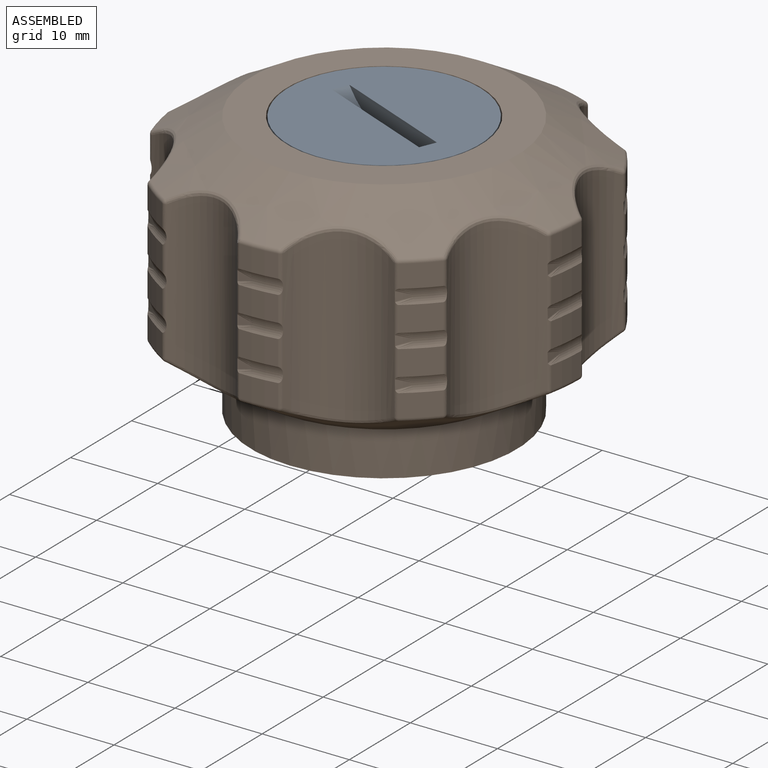
[diagram: assembled view]
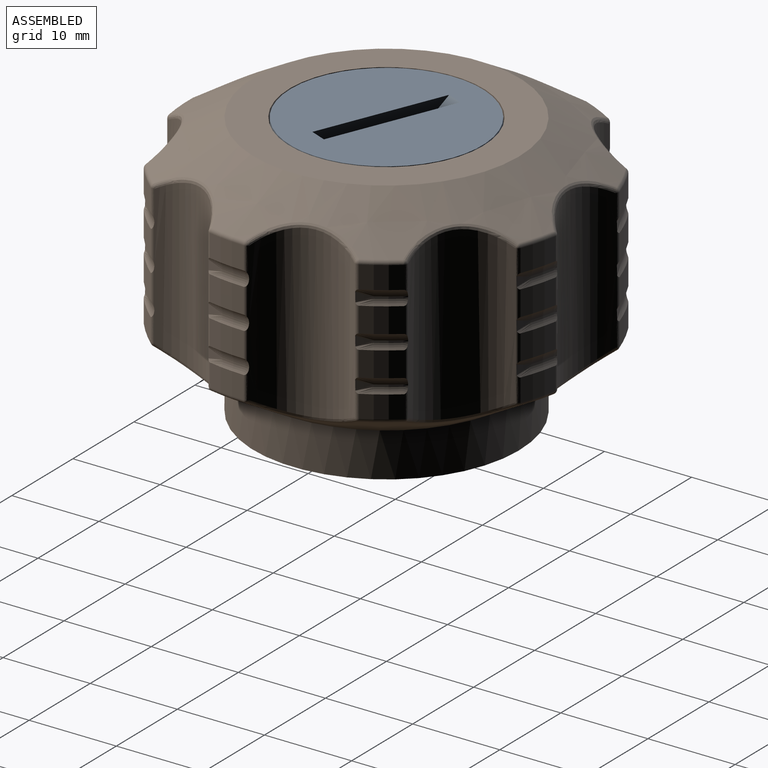
[diagram: assembled view, second angle]
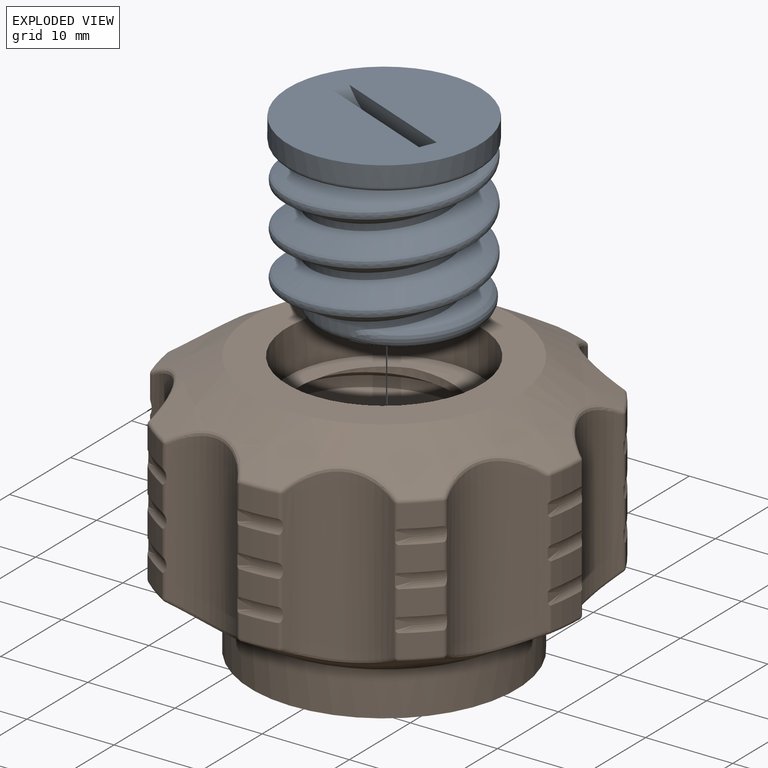
[diagram: exploded view]
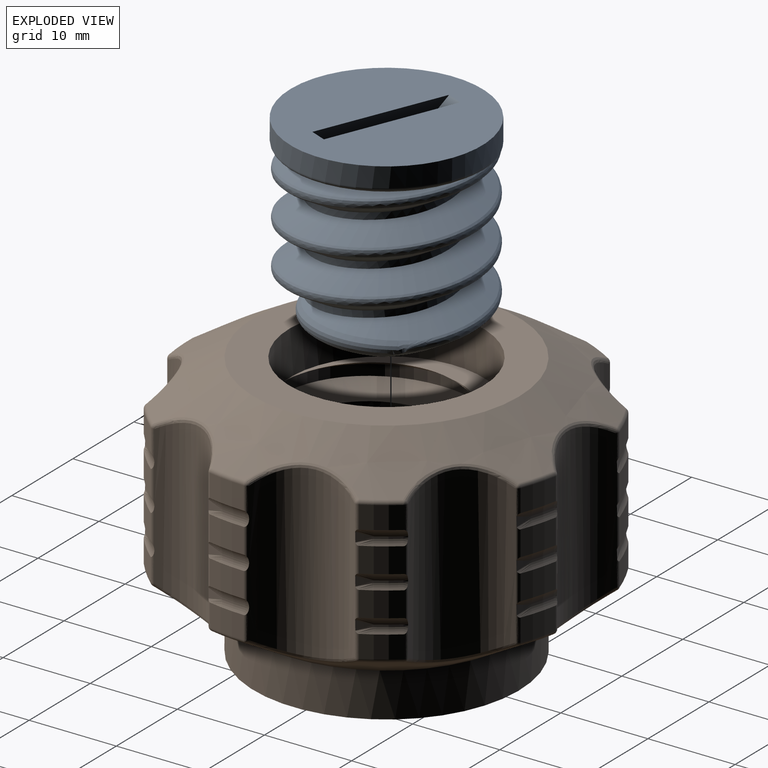
[diagram: exploded view, second angle]
ASSEMBLY  parts=2 mates=2
PART A: 24 faces, bbox 23.8x26.6x22.8 mm
  f0: plane 15.83x15.15mm, normal (0,0,-1), area 103mm2, adj f3,f7,f13,f14
  f1: plane 21.97x21.97mm, normal (0,0,1), area 348.9mm2, adj f5,f9,f10,f11
  f2: cylinder r=7.81mm len=16.51mm, axis (0,0,1), area 123.2mm2, adj f3,f4,f6,f13,f14
  f3: bspline ~25.66x22.23mm, area 642.2mm2, adj f0,f2,f6,f13,f14,f16,f19
  f4: bspline ~25.66x22.23mm, area 575.8mm2, adj f2,f6,f13,f15,f23
  f5: cylinder r=10.99mm len=21.97mm, axis (0,0,-1), area 159.4mm2, adj f1,f18,f19,f20,f21,f22,f23
  f6: plane 20.96x20.85mm, normal (0,0,-1), area 71.6mm2, adj f2,f3,f4,f21
  f7: cylinder r=5.27mm len=10.54mm, axis (0,0,1), area 33.6mm2, adj f0,f8
  f8: plane 10.54x10.54mm, normal (0,0,-1), area 87.3mm2, adj f7
  f9: cylinder r=10.6mm len=15.26mm, axis (0,-1,0), area 33.7mm2, adj f1,f10,f11
  f10: plane 15.26x3.24mm, normal (0,-1,0), area 34.1mm2, adj f1,f9
  f11: plane 15.26x3.24mm, normal (0,1,0), area 34.1mm2, adj f1,f9
  f12: cylinder r=10.86mm len=21.72mm, axis (0,0,-1), area 45.8mm2, adj f15,f16,f17,f20
  f13: bspline ~23.16x10.91mm, area 49.9mm2, adj f0,f2,f3,f4,f14,f16,f17
  f14: torus R=6.79mm, axis (0,0,-1), area 26.1mm2, adj f0,f2,f3,f13
  f15: bspline ~21.73x21.73mm, area 112.8mm2, adj f4,f12,f17,f22
  f16: bspline ~21.73x21.72mm, area 118.7mm2, adj f3,f12,f13,f17,f18
  f17: bspline ~2.79x0.98mm, area 0.7mm2, adj f12,f13,f15,f16
  f18: bspline ~5.82x1.45mm, area 2.8mm2, adj f5,f16,f19,f20
  f19: bspline ~2.82x0.84mm, area 0.8mm2, adj f3,f5,f18,f21
  f20: torus R=10.48mm, axis (0,0,-1), area 1mm2, adj f5,f12,f18,f22
  f21: torus R=10.48mm, axis (0,0,1), area 40.8mm2, adj f5,f6,f19,f23
  f22: bspline ~5.35x3.22mm, area 2.8mm2, adj f5,f15,f20,f23
  f23: bspline ~2.21x0.76mm, area 0.7mm2, adj f4,f5,f21,f22
PART B: 238 faces, bbox 48.3x47.6x31.7 mm
  f0: cylinder r=22.86mm len=3.64mm, axis (0,0,-1), area 10.9mm2, adj f12,f90,f95,f237
  f1: cylinder r=22.86mm len=3.64mm, axis (0,0,-1), area 12.2mm2, adj f6,f13,f236,f237
  f2: cylinder r=22.86mm len=3.64mm, axis (0,0,-1), area 12.2mm2, adj f7,f14,f235,f236
  f3: cylinder r=0.51mm len=4.2mm, axis (0,0,1), area 1.9mm2, adj f73,f92,f212,f213
  f4: cylinder r=0.51mm len=4.2mm, axis (0,0,1), area 1.9mm2, adj f74,f92,f211,f212
  f5: cylinder r=0.51mm len=3.25mm, axis (0,0,1), area 1.5mm2, adj f84,f92,f192,f211
  f6: cylinder r=0.51mm len=4.2mm, axis (0,0,-1), area 1.9mm2, adj f1,f92,f236,f237
  f7: cylinder r=0.51mm len=4.2mm, axis (0,0,-1), area 1.9mm2, adj f2,f92,f235,f236
  f8: cylinder r=0.51mm len=3.25mm, axis (0,0,-1), area 1.5mm2, adj f82,f88,f92,f235
  f9: cylinder r=22.86mm len=4.14mm, axis (0,0,-1), area 10.9mm2, adj f21,f102,f107,f234
  f10: cylinder r=22.86mm len=4.14mm, axis (0,0,-1), area 12.2mm2, adj f15,f22,f233,f234
  f11: cylinder r=22.86mm len=4.14mm, axis (0,0,-1), area 12.2mm2, adj f16,f23,f232,f233
  f12: cylinder r=0.51mm len=3.25mm, axis (0,0,1), area 1.5mm2, adj f0,f99,f104,f237
  f13: cylinder r=0.51mm len=4.2mm, axis (0,0,1), area 1.9mm2, adj f1,f104,f236,f237
  f14: cylinder r=0.51mm len=4.2mm, axis (0,0,1), area 1.9mm2, adj f2,f104,f235,f236
  f15: cylinder r=0.51mm len=4.2mm, axis (0,0,-1), area 1.9mm2, adj f10,f104,f233,f234
  f16: cylinder r=0.51mm len=4.2mm, axis (0,0,-1), area 1.9mm2, adj f11,f104,f232,f233
  f17: cylinder r=0.51mm len=3.25mm, axis (0,0,-1), area 1.5mm2, adj f94,f100,f104,f232
  f18: cylinder r=22.86mm len=3.22mm, axis (0,0,-1), area 10.9mm2, adj f24,f30,f119,f231
  f19: cylinder r=22.86mm len=3.22mm, axis (0,0,-1), area 12.2mm2, adj f25,f31,f230,f231
  f20: cylinder r=22.86mm len=3.22mm, axis (0,0,-1), area 12.2mm2, adj f26,f32,f229,f230
  f21: cylinder r=0.51mm len=3.25mm, axis (0,0,1), area 1.5mm2, adj f9,f111,f116,f234
  f22: cylinder r=0.51mm len=4.2mm, axis (0,0,1), area 1.9mm2, adj f10,f116,f233,f234
  f23: cylinder r=0.51mm len=4.2mm, axis (0,0,1), area 1.9mm2, adj f11,f116,f232,f233
  f24: cylinder r=0.51mm len=3.25mm, axis (0,0,-1), area 1.5mm2, adj f18,f115,f116,f231
  f25: cylinder r=0.51mm len=4.2mm, axis (0,0,-1), area 1.9mm2, adj f19,f116,f230,f231
  f26: cylinder r=0.51mm len=4.2mm, axis (0,0,-1), area 1.9mm2, adj f20,f116,f229,f230
  f27: cylinder r=22.86mm len=4.21mm, axis (0,0,-1), area 10.9mm2, adj f33,f131,f133,f228
  f28: cylinder r=22.86mm len=4.21mm, axis (0,0,-1), area 12.2mm2, adj f34,f39,f227,f228
  f29: cylinder r=22.86mm len=4.21mm, axis (0,0,-1), area 12.2mm2, adj f35,f40,f226,f227
  f30: cylinder r=0.51mm len=3.25mm, axis (0,0,1), area 1.5mm2, adj f18,f123,f128,f231
  f31: cylinder r=0.51mm len=4.2mm, axis (0,0,1), area 1.9mm2, adj f19,f128,f230,f231
  f32: cylinder r=0.51mm len=4.2mm, axis (0,0,1), area 1.9mm2, adj f20,f128,f229,f230
  f33: cylinder r=0.51mm len=3.25mm, axis (0,0,-1), area 1.5mm2, adj f27,f127,f128,f228
  f34: cylinder r=0.51mm len=4.2mm, axis (0,0,-1), area 1.9mm2, adj f28,f128,f227,f228
  f35: cylinder r=0.51mm len=4.2mm, axis (0,0,-1), area 1.9mm2, adj f29,f128,f226,f227
  f36: cylinder r=22.86mm len=3.22mm, axis (0,0,-1), area 10.9mm2, adj f42,f143,f145,f225
  f37: cylinder r=22.86mm len=3.22mm, axis (0,0,-1), area 12.2mm2, adj f43,f48,f224,f225
  f38: cylinder r=22.86mm len=3.22mm, axis (0,0,-1), area 12.2mm2, adj f44,f49,f223,f224
  f39: cylinder r=0.51mm len=4.2mm, axis (0,0,1), area 1.9mm2, adj f28,f140,f227,f228
  f40: cylinder r=0.51mm len=4.2mm, axis (0,0,1), area 1.9mm2, adj f29,f140,f226,f227
  f41: cylinder r=0.51mm len=3.25mm, axis (0,0,1), area 1.5mm2, adj f118,f132,f140,f226
  f42: cylinder r=0.51mm len=3.25mm, axis (0,0,-1), area 1.5mm2, adj f36,f139,f140,f225
  f43: cylinder r=0.51mm len=4.2mm, axis (0,0,-1), area 1.9mm2, adj f37,f140,f224,f225
  f44: cylinder r=0.51mm len=4.2mm, axis (0,0,-1), area 1.9mm2, adj f38,f140,f223,f224
  f45: cylinder r=22.86mm len=4.14mm, axis (0,0,-1), area 10.9mm2, adj f57,f150,f155,f222
  f46: cylinder r=22.86mm len=4.14mm, axis (0,0,-1), area 12.2mm2, adj f51,f58,f221,f222
  f47: cylinder r=22.86mm len=4.14mm, axis (0,0,-1), area 12.2mm2, adj f52,f59,f220,f221
  f48: cylinder r=0.51mm len=4.2mm, axis (0,0,1), area 1.9mm2, adj f37,f152,f224,f225
  f49: cylinder r=0.51mm len=4.2mm, axis (0,0,1), area 1.9mm2, adj f38,f152,f223,f224
  f50: cylinder r=0.51mm len=3.25mm, axis (0,0,1), area 1.5mm2, adj f130,f144,f152,f223
  f51: cylinder r=0.51mm len=4.2mm, axis (0,0,-1), area 1.9mm2, adj f46,f152,f221,f222
  f52: cylinder r=0.51mm len=4.2mm, axis (0,0,-1), area 1.9mm2, adj f47,f152,f220,f221
  f53: cylinder r=0.51mm len=3.25mm, axis (0,0,-1), area 1.5mm2, adj f142,f148,f152,f220
  f54: cylinder r=22.86mm len=3.64mm, axis (0,0,-1), area 10.9mm2, adj f66,f162,f167,f219
  f55: cylinder r=22.86mm len=3.64mm, axis (0,0,-1), area 12.2mm2, adj f60,f67,f218,f219
  f56: cylinder r=22.86mm len=3.64mm, axis (0,0,-1), area 12.2mm2, adj f61,f68,f217,f218
  f57: cylinder r=0.51mm len=3.25mm, axis (0,0,1), area 1.5mm2, adj f45,f159,f164,f222
  f58: cylinder r=0.51mm len=4.2mm, axis (0,0,1), area 1.9mm2, adj f46,f164,f221,f222
  f59: cylinder r=0.51mm len=4.2mm, axis (0,0,1), area 1.9mm2, adj f47,f164,f220,f221
  f60: cylinder r=0.51mm len=4.2mm, axis (0,0,-1), area 1.9mm2, adj f55,f164,f218,f219
  f61: cylinder r=0.51mm len=4.2mm, axis (0,0,-1), area 1.9mm2, adj f56,f164,f217,f218
  f62: cylinder r=0.51mm len=3.25mm, axis (0,0,-1), area 1.5mm2, adj f154,f160,f164,f217
  f63: cylinder r=22.86mm len=3.95mm, axis (0,0,-1), area 10.9mm2, adj f69,f200,f204,f216
  f64: cylinder r=22.86mm len=3.95mm, axis (0,0,-1), area 12.2mm2, adj f70,f75,f215,f216
  f65: cylinder r=22.86mm len=3.95mm, axis (0,0,-1), area 12.2mm2, adj f71,f76,f214,f215
  f66: cylinder r=0.51mm len=3.25mm, axis (0,0,1), area 1.5mm2, adj f54,f171,f176,f219
  f67: cylinder r=0.51mm len=4.2mm, axis (0,0,1), area 1.9mm2, adj f55,f176,f218,f219
  f68: cylinder r=0.51mm len=4.2mm, axis (0,0,1), area 1.9mm2, adj f56,f176,f217,f218
  f69: cylinder r=0.51mm len=3.25mm, axis (0,0,-1), area 1.5mm2, adj f63,f175,f176,f216
  f70: cylinder r=0.51mm len=4.2mm, axis (0,0,-1), area 1.9mm2, adj f64,f176,f215,f216
  f71: cylinder r=0.51mm len=4.2mm, axis (0,0,-1), area 1.9mm2, adj f65,f176,f214,f215
  f72: cylinder r=22.86mm len=3.95mm, axis (0,0,-1), area 10.9mm2, adj f83,f85,f209,f213
  f73: cylinder r=22.86mm len=3.95mm, axis (0,0,-1), area 12.2mm2, adj f3,f78,f212,f213
  f74: cylinder r=22.86mm len=3.95mm, axis (0,0,-1), area 12.2mm2, adj f4,f79,f211,f212
  f75: cylinder r=0.51mm len=4.2mm, axis (0,0,1), area 1.9mm2, adj f64,f202,f215,f216
  f76: cylinder r=0.51mm len=4.2mm, axis (0,0,1), area 1.9mm2, adj f65,f202,f214,f215
  f77: cylinder r=0.51mm len=3.25mm, axis (0,0,1), area 1.5mm2, adj f166,f202,f203,f214
  f78: cylinder r=0.51mm len=4.2mm, axis (0,0,-1), area 1.9mm2, adj f73,f202,f212,f213
  f79: cylinder r=0.51mm len=4.2mm, axis (0,0,-1), area 1.9mm2, adj f74,f202,f211,f212
  f80: cylinder r=0.51mm len=3.25mm, axis (0,0,-1), area 1.5mm2, adj f192,f202,f207,f211
  f81: torus R=22.35mm, axis (0,0,1), area 2.2mm2, adj f84,f187,f192,f207
  f82: cylinder r=22.86mm len=3.64mm, axis (0,0,-1), area 10.9mm2, adj f8,f93,f97,f235
  f83: torus R=22.35mm, axis (0,0,1), area 2.2mm2, adj f72,f87,f191,f210
  f84: sphere r=0.51mm, area 0.3mm2, adj f5,f81,f86
  f85: cylinder r=0.51mm len=3.25mm, axis (0,0,1), area 1.5mm2, adj f72,f87,f92,f213
  f86: bspline ~9.87x7.67mm, area 7.5mm2, adj f84,f88,f92,f187
  f87: sphere r=0.51mm, area 0.3mm2, adj f83,f85,f89
  f88: sphere r=0.51mm, area 0.3mm2, adj f8,f86,f93
  f89: bspline ~9.87x7.68mm, area 7.5mm2, adj f87,f91,f92,f191
  f90: cylinder r=0.51mm len=3.25mm, axis (0,0,-1), area 1.5mm2, adj f0,f91,f92,f237
  f91: sphere r=0.51mm, area 0.3mm2, adj f89,f90,f95
  f92: cylinder r=7.62mm len=19.54mm, axis (0,0,1), area 215.8mm2, adj f3,f4,f5,f6,f7,f8,f85,f86
  f93: torus R=22.35mm, axis (0,0,1), area 2.2mm2, adj f82,f88,f96,f187
  f94: cylinder r=22.86mm len=4.14mm, axis (0,0,-1), area 10.9mm2, adj f17,f105,f109,f232
  f95: torus R=22.35mm, axis (0,0,1), area 2.2mm2, adj f0,f91,f99,f191
  f96: sphere r=0.51mm, area 0.3mm2, adj f93,f97,f98
  f97: cylinder r=0.51mm len=3.25mm, axis (0,0,1), area 1.5mm2, adj f82,f96,f104,f235
  f98: bspline ~12.71x4.44mm, area 7.5mm2, adj f96,f100,f104,f187
  f99: sphere r=0.51mm, area 0.3mm2, adj f12,f95,f101
  f100: sphere r=0.51mm, area 0.3mm2, adj f17,f98,f105
  f101: bspline ~12.71x4.45mm, area 7.5mm2, adj f99,f103,f104,f191
  f102: cylinder r=0.51mm len=3.25mm, axis (0,0,-1), area 1.5mm2, adj f9,f103,f104,f234
  f103: sphere r=0.51mm, area 0.3mm2, adj f101,f102,f107
  f104: cylinder r=7.62mm len=19.54mm, axis (0,0,1), area 215.8mm2, adj f12,f13,f14,f15,f16,f17,f97,f98
  f105: torus R=22.35mm, axis (0,0,1), area 2.2mm2, adj f94,f100,f108,f187
  f106: cylinder r=22.86mm len=3.22mm, axis (0,0,-1), area 10.9mm2, adj f114,f117,f121,f229
  f107: torus R=22.35mm, axis (0,0,1), area 2.2mm2, adj f9,f103,f111,f191
  f108: sphere r=0.51mm, area 0.1mm2, adj f105,f109,f110
  f109: cylinder r=0.51mm len=3.25mm, axis (0,0,1), area 1.5mm2, adj f94,f108,f116,f232
  f110: bspline ~11.17x7.04mm, area 7.5mm2, adj f108,f112,f116,f187
  f111: sphere r=0.51mm, area 0.1mm2, adj f21,f107,f113
  f112: sphere r=0.51mm, area 0.3mm2, adj f110,f114,f117
  f113: bspline ~11.17x7.04mm, area 7.5mm2, adj f111,f115,f116,f191
  f114: cylinder r=0.51mm len=3.25mm, axis (0,0,-1), area 1.5mm2, adj f106,f112,f116,f229
  f115: sphere r=0.51mm, area 0.3mm2, adj f24,f113,f119
  f116: cylinder r=7.62mm len=19.54mm, axis (0,0,1), area 215.8mm2, adj f21,f22,f23,f24,f25,f26,f109,f110
  f117: torus R=22.35mm, axis (0,0,1), area 2.2mm2, adj f106,f112,f120,f187
  f118: cylinder r=22.86mm len=4.21mm, axis (0,0,-1), area 10.9mm2, adj f41,f126,f129,f226
  f119: torus R=22.35mm, axis (0,0,1), area 2.2mm2, adj f18,f115,f123,f191
  f120: sphere r=0.51mm, area 0.1mm2, adj f117,f121,f122
  f121: cylinder r=0.51mm len=3.25mm, axis (0,0,1), area 1.5mm2, adj f106,f120,f128,f229
  f122: bspline ~12.12x5.7mm, area 7.5mm2, adj f120,f124,f128,f187
  f123: sphere r=0.51mm, area 0.1mm2, adj f30,f119,f125
  f124: sphere r=0.51mm, area 0.2mm2, adj f122,f126,f129
  f125: bspline ~12.12x5.7mm, area 7.5mm2, adj f123,f127,f128,f191
  f126: cylinder r=0.51mm len=3.25mm, axis (0,0,-1), area 1.5mm2, adj f118,f124,f128,f226
  f127: sphere r=0.51mm, area 0.2mm2, adj f33,f125,f131
  f128: cylinder r=7.62mm len=19.54mm, axis (0,0,1), area 215.8mm2, adj f30,f31,f32,f33,f34,f35,f121,f122
  f129: torus R=22.35mm, axis (0,0,1), area 2.2mm2, adj f118,f124,f132,f187
  f130: cylinder r=22.86mm len=3.22mm, axis (0,0,-1), area 10.9mm2, adj f50,f138,f141,f223
  f131: torus R=22.35mm, axis (0,0,1), area 2.2mm2, adj f27,f127,f135,f191
  f132: sphere r=0.51mm, area 0.1mm2, adj f41,f129,f134
  f133: cylinder r=0.51mm len=3.25mm, axis (0,0,1), area 1.5mm2, adj f27,f135,f140,f228
  f134: bspline ~12.12x5.7mm, area 7.5mm2, adj f132,f136,f140,f187
  f135: sphere r=0.51mm, area 0.1mm2, adj f131,f133,f137
  f136: sphere r=0.51mm, area 0.2mm2, adj f134,f138,f141
  f137: bspline ~12.12x5.7mm, area 7.5mm2, adj f135,f139,f140,f191
  f138: cylinder r=0.51mm len=3.25mm, axis (0,0,-1), area 1.5mm2, adj f130,f136,f140,f223
  f139: sphere r=0.51mm, area 0.2mm2, adj f42,f137,f143
  f140: cylinder r=7.62mm len=19.54mm, axis (0,0,1), area 215.8mm2, adj f39,f40,f41,f42,f43,f44,f133,f134
  f141: torus R=22.35mm, axis (0,0,1), area 2.2mm2, adj f130,f136,f144,f187
  f142: cylinder r=22.86mm len=4.14mm, axis (0,0,-1), area 10.9mm2, adj f53,f153,f157,f220
  f143: torus R=22.35mm, axis (0,0,1), area 2.2mm2, adj f36,f139,f147,f191
  f144: sphere r=0.51mm, area 0.3mm2, adj f50,f141,f146
  f145: cylinder r=0.51mm len=3.25mm, axis (0,0,1), area 1.5mm2, adj f36,f147,f152,f225
  f146: bspline ~11.02x6.29mm, area 7.5mm2, adj f144,f148,f152,f187
  f147: sphere r=0.51mm, area 0.3mm2, adj f143,f145,f149
  f148: sphere r=0.51mm, area 0.2mm2, adj f53,f146,f153
  f149: bspline ~11.02x6.3mm, area 7.5mm2, adj f147,f151,f152,f191
  f150: cylinder r=0.51mm len=3.25mm, axis (0,0,-1), area 1.5mm2, adj f45,f151,f152,f222
  f151: sphere r=0.51mm, area 0.2mm2, adj f149,f150,f155
  f152: cylinder r=7.62mm len=19.54mm, axis (0,0,1), area 215.8mm2, adj f48,f49,f50,f51,f52,f53,f145,f146
  f153: torus R=22.35mm, axis (0,0,1), area 2.2mm2, adj f142,f148,f156,f187
  f154: cylinder r=22.86mm len=3.64mm, axis (0,0,-1), area 10.9mm2, adj f62,f165,f169,f217
  f155: torus R=22.35mm, axis (0,0,1), area 2.2mm2, adj f45,f151,f159,f191
  f156: sphere r=0.51mm, area 0.3mm2, adj f153,f157,f158
  f157: cylinder r=0.51mm len=3.25mm, axis (0,0,1), area 1.5mm2, adj f142,f156,f164,f220
  f158: bspline ~12.71x4.45mm, area 7.5mm2, adj f156,f160,f164,f187
  f159: sphere r=0.51mm, area 0.3mm2, adj f57,f155,f161
  f160: sphere r=0.51mm, area 0.3mm2, adj f62,f158,f165
  f161: bspline ~12.71x4.44mm, area 7.5mm2, adj f159,f163,f164,f191
  f162: cylinder r=0.51mm len=3.25mm, axis (0,0,-1), area 1.5mm2, adj f54,f163,f164,f219
  f163: sphere r=0.51mm, area 0.3mm2, adj f161,f162,f167
  f164: cylinder r=7.62mm len=19.54mm, axis (0,0,1), area 215.8mm2, adj f57,f58,f59,f60,f61,f62,f157,f158
  f165: torus R=22.35mm, axis (0,0,1), area 2.2mm2, adj f154,f160,f168,f187
  f166: cylinder r=22.86mm len=3.95mm, axis (0,0,-1), area 10.9mm2, adj f77,f174,f201,f214
  f167: torus R=22.35mm, axis (0,0,1), area 2.2mm2, adj f54,f163,f171,f191
  f168: sphere r=0.51mm, area 0.3mm2, adj f165,f169,f170
  f169: cylinder r=0.51mm len=3.25mm, axis (0,0,1), area 1.5mm2, adj f154,f168,f176,f217
  f170: bspline ~9.11x8.45mm, area 7.5mm2, adj f168,f172,f176,f187
  f171: sphere r=0.51mm, area 0.3mm2, adj f66,f167,f173
  f172: sphere r=0.51mm, area 0.3mm2, adj f170,f174,f201
  f173: bspline ~9.88x8.45mm, area 7.5mm2, adj f171,f175,f176,f191
  f174: cylinder r=0.51mm len=3.25mm, axis (0,0,-1), area 1.5mm2, adj f166,f172,f176,f214
  f175: sphere r=0.51mm, area 0.3mm2, adj f69,f173,f200
  f176: cylinder r=7.62mm len=19.54mm, axis (0,0,1), area 215.8mm2, adj f66,f67,f68,f69,f70,f71,f169,f170
  f177: cylinder r=8.57mm len=17.15mm, axis (0,0,1), area 145.7mm2, adj f178,f179,f194,f199
  f178: bspline ~25.66x22.23mm, area 545.5mm2, adj f177,f194,f195,f197,f198,f199
  f179: bspline ~25.66x22.23mm, area 545.5mm2, adj f177,f194,f195,f196,f197,f198,f199
  f180: plane 5.51x5.08mm, normal (-0.5,0.87,0), area 32.3mm2, adj f181,f185,f193,f194
  f181: plane 6.36x5.08mm, normal (-1,0,0), area 32.3mm2, adj f180,f182,f193,f194
  f182: plane 5.51x5.08mm, normal (-0.5,-0.87,0), area 32.3mm2, adj f181,f183,f193,f194
  f183: plane 5.51x5.08mm, normal (0.5,-0.87,0), area 32.3mm2, adj f182,f184,f193,f194
  f184: plane 6.36x5.08mm, normal (1,0,0), area 32.3mm2, adj f183,f185,f193,f194
  f185: plane 5.51x5.08mm, normal (0.5,0.87,0), area 32.3mm2, adj f180,f184,f193,f194
  f186: cylinder r=3.17mm len=6.35mm, axis (0,0,1), area 101.3mm2, adj f189,f193
  f187: cone r=22.86mm half-angle=60deg, axis (0,0,1), area 762.3mm2, adj f81,f86,f93,f98,f105,f110,f117,f122
  f188: cylinder r=15.24mm len=30.48mm, axis (0,0,-1), area 486.4mm2, adj f187,f189
  f189: plane 30.48x30.48mm, normal (0,0,-1), area 698mm2, adj f186,f188
  f190: plane 30.48x30.48mm, normal (0,0,1), area 341.7mm2, adj f191,f195
  f191: cone r=22.86mm half-angle=60deg, axis (0,0,-1), area 762.6mm2, adj f83,f89,f95,f101,f107,f113,f119,f125
  f192: cylinder r=22.86mm len=3.95mm, axis (0,0,-1), area 10.9mm2, adj f5,f80,f81,f211
  f193: plane 12.73x11.02mm, normal (0,0,1), area 73.6mm2, adj f180,f181,f182,f183,f184,f185,f186
  f194: plane 21.34x21.28mm, normal (0,0,1), area 207.5mm2, adj f177,f178,f179,f180,f181,f182,f183,f184
  f195: cylinder r=11.11mm len=22.23mm, axis (0,0,1), area 431mm2, adj f178,f179,f190,f198,f199
  f196: cylinder r=11.11mm len=11.11mm, axis (0,0,1), area 10.7mm2, adj f179,f194,f197
  f197: cylinder r=11.11mm len=22.23mm, axis (0,0,1), area 86.9mm2, adj f178,f179,f196,f198
  f198: cylinder r=11.11mm len=22.23mm, axis (0,0,1), area 86.9mm2, adj f178,f179,f195,f197
  f199: plane 23.4x23.4mm, normal (0,0,1), area 75.2mm2, adj f177,f178,f179,f195
  f200: torus R=22.35mm, axis (0,0,1), area 2.2mm2, adj f63,f175,f191,f206
  f201: torus R=22.35mm, axis (0,0,1), area 2.2mm2, adj f166,f172,f187,f203
  f202: cylinder r=7.62mm len=19.54mm, axis (0,0,1), area 215.8mm2, adj f75,f76,f77,f78,f79,f80,f204,f205
  f203: sphere r=0.51mm, area 0.3mm2, adj f77,f201,f205
  f204: cylinder r=0.51mm len=3.25mm, axis (0,0,1), area 1.5mm2, adj f63,f202,f206,f216
  f205: bspline ~12.9x3.31mm, area 7.5mm2, adj f187,f202,f203,f207
  f206: sphere r=0.51mm, area 0.3mm2, adj f200,f204,f208
  f207: sphere r=0.51mm, area 0.3mm2, adj f80,f81,f205
  f208: bspline ~12.9x3.31mm, area 7.5mm2, adj f191,f202,f206,f210
  f209: cylinder r=0.51mm len=3.25mm, axis (0,0,-1), area 1.5mm2, adj f72,f202,f210,f213
  f210: sphere r=0.51mm, area 0.3mm2, adj f83,f208,f209
  f211: torus R=24.13mm, axis (0,0,1), area 8.4mm2, adj f4,f5,f74,f79,f80,f92,f192,f202
  f212: torus R=24.13mm, axis (0,0,1), area 8.4mm2, adj f3,f4,f73,f74,f78,f79,f92,f202
  f213: torus R=24.13mm, axis (0,0,1), area 8.4mm2, adj f3,f72,f73,f78,f85,f92,f202,f209
  f214: torus R=24.13mm, axis (0,0,1), area 8.4mm2, adj f65,f71,f76,f77,f166,f174,f176,f202
  f215: torus R=24.13mm, axis (0,0,1), area 8.4mm2, adj f64,f65,f70,f71,f75,f76,f176,f202
  f216: torus R=24.13mm, axis (0,0,1), area 8.4mm2, adj f63,f64,f69,f70,f75,f176,f202,f204
  f217: torus R=24.13mm, axis (0,0,1), area 8.4mm2, adj f56,f61,f62,f68,f154,f164,f169,f176
  f218: torus R=24.13mm, axis (0,0,1), area 8.4mm2, adj f55,f56,f60,f61,f67,f68,f164,f176
  f219: torus R=24.13mm, axis (0,0,1), area 8.4mm2, adj f54,f55,f60,f66,f67,f162,f164,f176
  f220: torus R=24.13mm, axis (0,0,1), area 8.4mm2, adj f47,f52,f53,f59,f142,f152,f157,f164
  f221: torus R=24.13mm, axis (0,0,1), area 8.4mm2, adj f46,f47,f51,f52,f58,f59,f152,f164
  f222: torus R=24.13mm, axis (0,0,1), area 8.4mm2, adj f45,f46,f51,f57,f58,f150,f152,f164
  f223: torus R=24.13mm, axis (0,0,1), area 8.4mm2, adj f38,f44,f49,f50,f130,f138,f140,f152
  f224: torus R=24.13mm, axis (0,0,1), area 8.4mm2, adj f37,f38,f43,f44,f48,f49,f140,f152
  f225: torus R=24.13mm, axis (0,0,1), area 8.4mm2, adj f36,f37,f42,f43,f48,f140,f145,f152
  f226: torus R=24.13mm, axis (0,0,1), area 8.4mm2, adj f29,f35,f40,f41,f118,f126,f128,f140
  f227: torus R=24.13mm, axis (0,0,1), area 8.4mm2, adj f28,f29,f34,f35,f39,f40,f128,f140
  f228: torus R=24.13mm, axis (0,0,1), area 8.4mm2, adj f27,f28,f33,f34,f39,f128,f133,f140
  f229: torus R=24.13mm, axis (0,0,1), area 8.4mm2, adj f20,f26,f32,f106,f114,f116,f121,f128
  f230: torus R=24.13mm, axis (0,0,1), area 8.4mm2, adj f19,f20,f25,f26,f31,f32,f116,f128
  f231: torus R=24.13mm, axis (0,0,1), area 8.4mm2, adj f18,f19,f24,f25,f30,f31,f116,f128
  f232: torus R=24.13mm, axis (0,0,1), area 8.4mm2, adj f11,f16,f17,f23,f94,f104,f109,f116
  f233: torus R=24.13mm, axis (0,0,1), area 8.4mm2, adj f10,f11,f15,f16,f22,f23,f104,f116
  f234: torus R=24.13mm, axis (0,0,1), area 8.4mm2, adj f9,f10,f15,f21,f22,f102,f104,f116
  f235: torus R=24.13mm, axis (0,0,1), area 8.4mm2, adj f2,f7,f8,f14,f82,f92,f97,f104
  f236: torus R=24.13mm, axis (0,0,1), area 8.4mm2, adj f1,f2,f6,f7,f13,f14,f92,f104
  f237: torus R=24.13mm, axis (0,0,1), area 8.4mm2, adj f0,f1,f6,f12,f13,f90,f92,f104
PLACE A rot(axis=(0,0,1),157.6deg) t=(0,0,7.62)mm
PLACE B rot(axis=(0,0,1),3.8deg) t=(0,0,0)mm fixed
MATE cylindrical A.f5 <-> B.f177  axis (0,0,-1) through (0,0,29.25)mm
MATE planar A.f2 <-> B.f186  axis (0,0,1) through (0,0,30.48)mm
